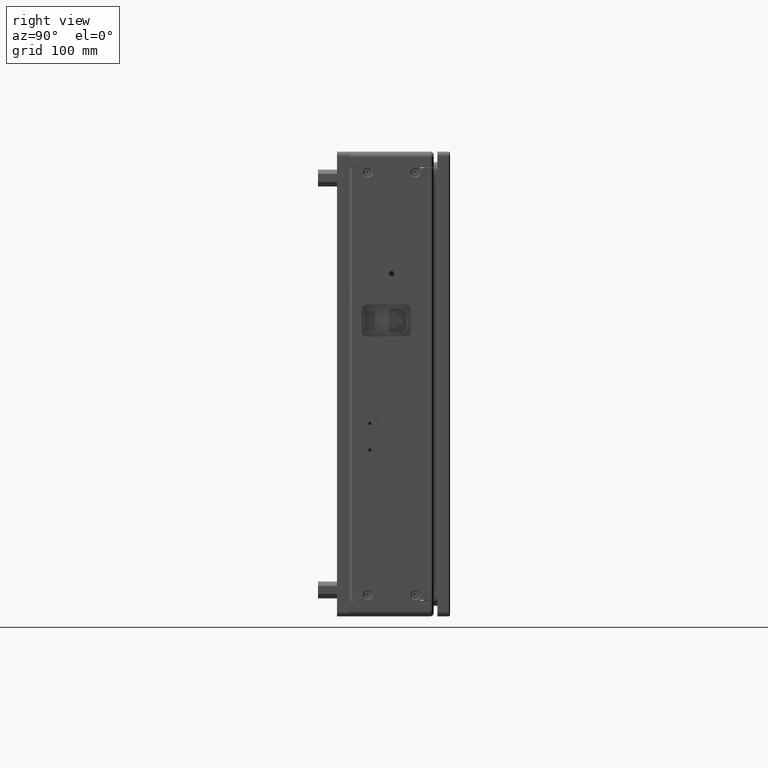
[diagram: clean part render]
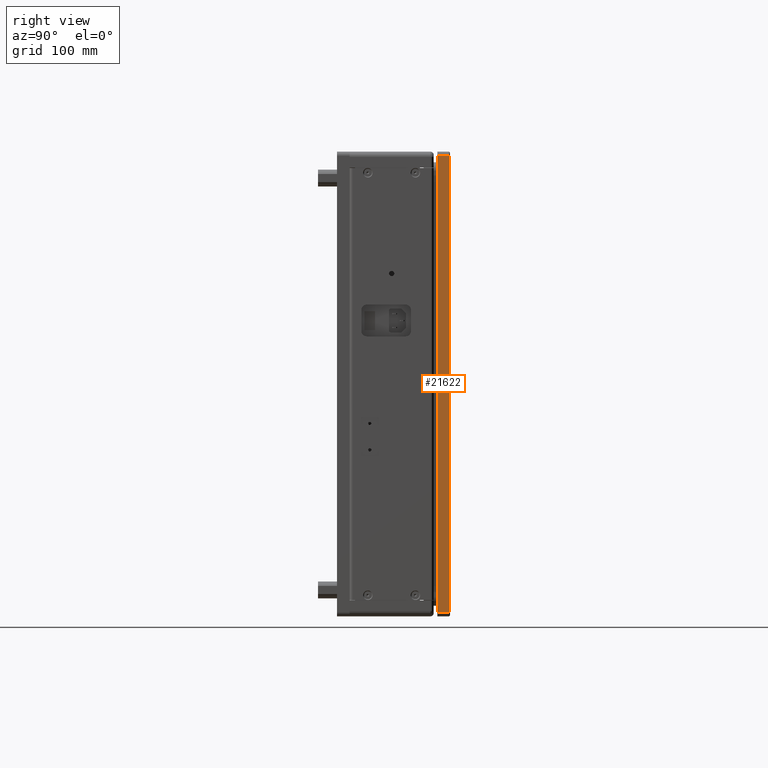
[diagram: same view with one face highlighted and labeled with its STEP entity id]
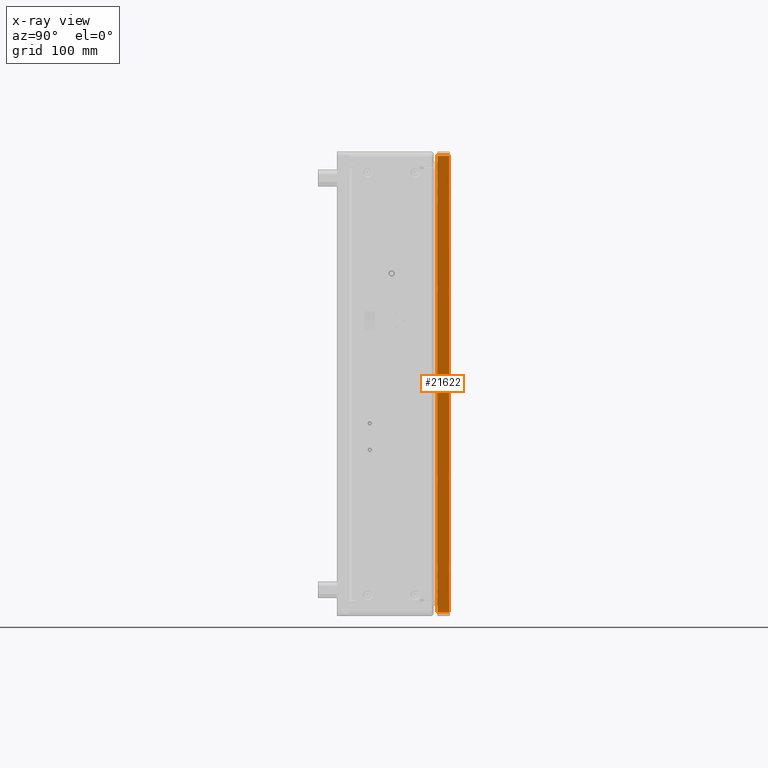
[diagram: x-ray of the same camera — body ghosted, the highlighted face saturated]
A machine part, right view. The second image highlights one B-rep face of the part: STEP entity #21622.
The next image is the same camera in x-ray: the body ghosted, the highlighted face saturated — about 0% of this face is hidden behind the body in this view.
In plain terms, the highlighted planar face has unit normal (1, 0, 0).
Its self-contained STEP definition (entity closure, byte-faithful):
#1478 = ORIENTED_EDGE ( 'NONE', *, *, #9586, .T. ) ;
#2260 = CARTESIAN_POINT ( 'NONE',  ( 224.4512755979889960, 101.1371811005064103, 493.3565087996968828 ) ) ;
#2988 = VERTEX_POINT ( 'NONE', #6080 ) ;
#6080 = CARTESIAN_POINT ( 'NONE',  ( 224.4512755979889960, 101.1371811005064387, 731.0000000000000000 ) ) ;
#6105 = EDGE_CURVE ( 'NONE', #2988, #11693, #11399, .T. ) ;
#7643 = VERTEX_POINT ( 'NONE', #32689 ) ;
#9385 = VECTOR ( 'NONE', #11975, 1000.000000000000000 ) ;
#9586 = EDGE_CURVE ( 'NONE', #21197, #11693, #31629, .T. ) ;
#9618 = CARTESIAN_POINT ( 'NONE',  ( 224.4512755979889960, 112.1371811005063961, 294.9999999999999432 ) ) ;
#9782 = ORIENTED_EDGE ( 'NONE', *, *, #36328, .F. ) ;
#10423 = ORIENTED_EDGE ( 'NONE', *, *, #6105, .F. ) ;
#11399 = LINE ( 'NONE', #14562, #9385 ) ;
#11693 = VERTEX_POINT ( 'NONE', #28305 ) ;
#11975 = DIRECTION ( 'NONE',  ( -2.376672073132158167E-16, 1.000000000000000000, -8.030019939456232739E-17 ) ) ;
#12586 = VECTOR ( 'NONE', #17325, 1000.000000000000000 ) ;
#13218 = VECTOR ( 'NONE', #21705, 1000.000000000000000 ) ;
#14562 = CARTESIAN_POINT ( 'NONE',  ( 224.4512755979889391, 113.1371811005064387, 731.0000000000000000 ) ) ;
#15185 = PLANE ( 'NONE',  #17961 ) ;
#17325 = DIRECTION ( 'NONE',  ( 1.066854937725736117E-16, 8.030019939456235204E-17, 1.000000000000000000 ) ) ;
#17578 = DIRECTION ( 'NONE',  ( -1.947621357119416358E-17, 8.030019939456232739E-17, 1.000000000000000000 ) ) ;
#17772 = CARTESIAN_POINT ( 'NONE',  ( 224.4512755979889960, 113.1371811005063961, 294.9999999999999432 ) ) ;
#17961 = AXIS2_PLACEMENT_3D ( 'NONE', #17772, #39200, #17578 ) ;
#21197 = VERTEX_POINT ( 'NONE', #39246 ) ;
#21622 = ADVANCED_FACE ( 'NONE', ( #32656 ), #15185, .T. ) ;
#21705 = DIRECTION ( 'NONE',  ( -1.947621357119416358E-17, 8.030019939456232739E-17, 1.000000000000000000 ) ) ;
#23948 = VECTOR ( 'NONE', #32404, 1000.000000000000000 ) ;
#28305 = CARTESIAN_POINT ( 'NONE',  ( 224.4512755979719429, 112.1371811005219001, 731.0000000000000000 ) ) ;
#29817 = LINE ( 'NONE', #2260, #12586 ) ;
#31395 = LINE ( 'NONE', #33701, #23948 ) ;
#31629 = LINE ( 'NONE', #9618, #13218 ) ;
#32311 = EDGE_LOOP ( 'NONE', ( #10423, #9782, #35576, #1478 ) ) ;
#32404 = DIRECTION ( 'NONE',  ( -2.376672073132158167E-16, 1.000000000000000000, -8.030019939456232739E-17 ) ) ;
#32656 = FACE_OUTER_BOUND ( 'NONE', #32311, .T. ) ;
#32689 = CARTESIAN_POINT ( 'NONE',  ( 224.4512755979889960, 101.1371811005063961, 298.9999999999999432 ) ) ;
#33184 = EDGE_CURVE ( 'NONE', #7643, #21197, #31395, .T. ) ;
#33701 = CARTESIAN_POINT ( 'NONE',  ( 224.4512755979889960, 113.1371811005063961, 298.9999999999999432 ) ) ;
#35576 = ORIENTED_EDGE ( 'NONE', *, *, #33184, .T. ) ;
#36328 = EDGE_CURVE ( 'NONE', #7643, #2988, #29817, .T. ) ;
#39200 = DIRECTION ( 'NONE',  ( 1.000000000000000000, 2.376672073132158167E-16, 1.947621357119414509E-17 ) ) ;
#39246 = CARTESIAN_POINT ( 'NONE',  ( 224.4512755979889960, 112.1371811005063961, 298.9999999999999432 ) ) ;